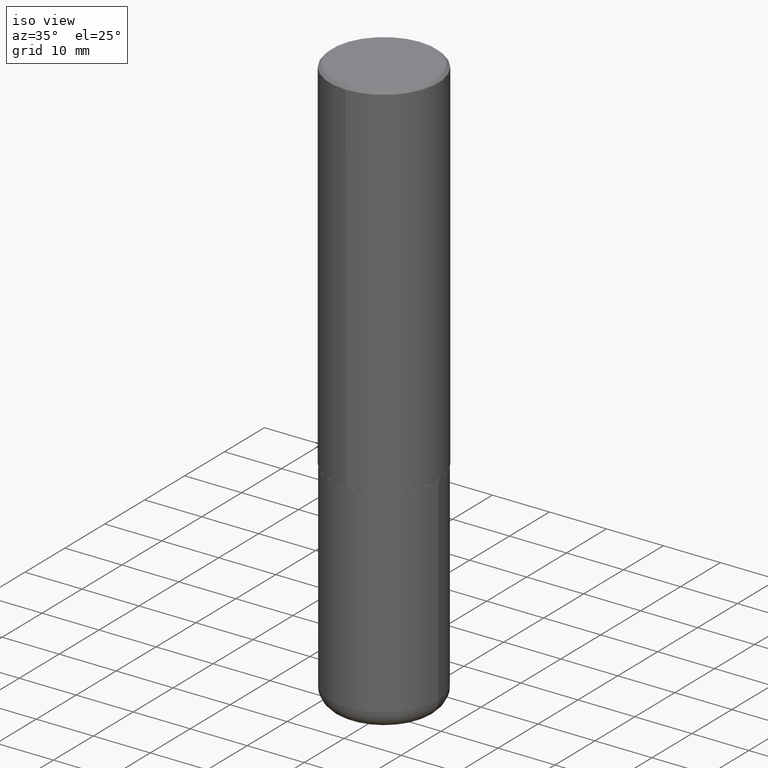
[diagram: clean part render]
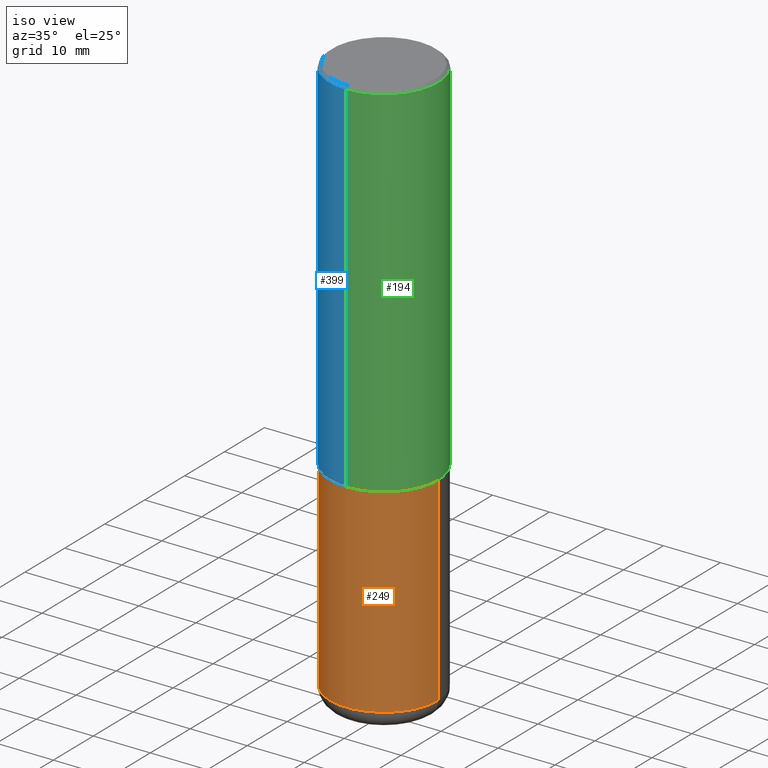
[diagram: same view with three faces highlighted in distinct colors, each labeled with its STEP entity id]
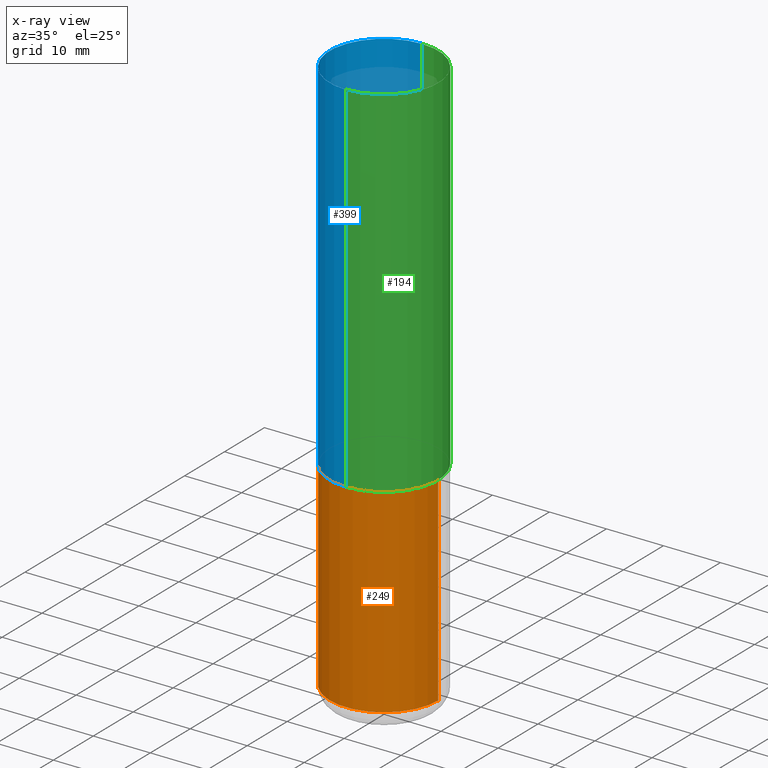
[diagram: x-ray of the same camera — body ghosted, the three highlighted faces saturated]
A machine part, iso view with three faces highlighted in distinct colors.
The next image is the same camera in x-ray (body ghosted, the three faces saturated) — at least one of them is partly hidden behind the body in this view.
Their STEP definitions:

[orange] entity #249 — the highlighted cylindrical surface (partial cylindrical patch) has radius 9.525 mm, axis along (-0, 0, 1).
#20 = AXIS2_PLACEMENT_3D ( 'NONE', #167, #362, #69 ) ;
#39 = EDGE_CURVE ( 'NONE', #196, #377, #205, .T. ) ;
#42 = LINE ( 'NONE', #231, #393 ) ;
#58 = VERTEX_POINT ( 'NONE', #230 ) ;
#68 = EDGE_CURVE ( 'NONE', #416, #58, #259, .T. ) ;
#69 = DIRECTION ( 'NONE',  ( 1.000000000000000000, -6.982962677686263555E-15, 0.000000000000000000 ) ) ;
#74 = AXIS2_PLACEMENT_3D ( 'NONE', #134, #198, #133 ) ;
#77 = LINE ( 'NONE', #336, #96 ) ;
#96 = VECTOR ( 'NONE', #203, 39.37007874015748143 ) ;
#115 = EDGE_LOOP ( 'NONE', ( #246, #407, #219, #244 ) ) ;
#116 = EDGE_CURVE ( 'NONE', #377, #58, #77, .T. ) ;
#124 = EDGE_CURVE ( 'NONE', #196, #416, #42, .T. ) ;
#127 = CYLINDRICAL_SURFACE ( 'NONE', #210, 0.3749999999999999445 ) ;
#133 = DIRECTION ( 'NONE',  ( 1.000000000000000000, -6.982962677686264344E-15, 0.000000000000000000 ) ) ;
#134 = CARTESIAN_POINT ( 'NONE',  ( 6.113672015462840371E-29, -8.728703347107863365E-15, -2.499999999999999556 ) ) ;
#154 = FACE_OUTER_BOUND ( 'NONE', #115, .T. ) ;
#161 = DIRECTION ( 'NONE',  ( -2.445468806185136597E-29, 3.491481338843145583E-15, 1.000000000000000000 ) ) ;
#167 = CARTESIAN_POINT ( 'NONE',  ( 9.476191623967404313E-29, -1.352949018801718908E-14, -3.875000000000000000 ) ) ;
#196 = VERTEX_POINT ( 'NONE', #414 ) ;
#198 = DIRECTION ( 'NONE',  ( -2.445468806185136597E-29, 3.491481338843145583E-15, 1.000000000000000000 ) ) ;
#203 = DIRECTION ( 'NONE',  ( -2.445468806185136877E-29, 3.491481338843145188E-15, 1.000000000000000000 ) ) ;
#205 = CIRCLE ( 'NONE', #20, 0.3749999999999999445 ) ;
#210 = AXIS2_PLACEMENT_3D ( 'NONE', #357, #161, #248 ) ;
#211 = CARTESIAN_POINT ( 'NONE',  ( 0.3749999999999999445, -1.614810119214953752E-14, -3.875000000000000000 ) ) ;
#219 = ORIENTED_EDGE ( 'NONE', *, *, #116, .T. ) ;
#229 = CARTESIAN_POINT ( 'NONE',  ( -0.3750000000000000555, -8.464561508462150527E-15, -2.499999999999999556 ) ) ;
#230 = CARTESIAN_POINT ( 'NONE',  ( 0.3750000000000000555, -1.134731435124021180E-14, -2.499999999999999556 ) ) ;
#231 = CARTESIAN_POINT ( 'NONE',  ( -0.3749999999999999445, 2.664535259100375303E-15, -1.844600658845589318E-29 ) ) ;
#244 = ORIENTED_EDGE ( 'NONE', *, *, #68, .F. ) ;
#246 = ORIENTED_EDGE ( 'NONE', *, *, #124, .F. ) ;
#248 = DIRECTION ( 'NONE',  ( 1.000000000000000000, -6.982962677686266711E-15, 4.876176775795935793E-29 ) ) ;
#249 = ADVANCED_FACE ( 'NONE', ( #154 ), #127, .T. ) ;
#259 = CIRCLE ( 'NONE', #74, 0.3750000000000000555 ) ;
#336 = CARTESIAN_POINT ( 'NONE',  ( 0.3749999999999999445, -2.618611004132349622E-15, 1.828566290923475642E-29 ) ) ;
#357 = CARTESIAN_POINT ( 'NONE',  ( 0.000000000000000000, 0.000000000000000000, 0.000000000000000000 ) ) ;
#362 = DIRECTION ( 'NONE',  ( -2.445468806185136597E-29, 3.491481338843145583E-15, 1.000000000000000000 ) ) ;
#365 = DIRECTION ( 'NONE',  ( -2.445468806185136877E-29, 3.491481338843145188E-15, 1.000000000000000000 ) ) ;
#377 = VERTEX_POINT ( 'NONE', #211 ) ;
#393 = VECTOR ( 'NONE', #365, 39.37007874015748143 ) ;
#407 = ORIENTED_EDGE ( 'NONE', *, *, #39, .T. ) ;
#414 = CARTESIAN_POINT ( 'NONE',  ( -0.3749999999999999445, -1.086495492891681496E-14, -3.875000000000000000 ) ) ;
#416 = VERTEX_POINT ( 'NONE', #229 ) ;

[blue] entity #399 — the highlighted cylindrical surface (partial cylindrical patch) has radius 9.525 mm, axis along (-0, 0, 1).
#12 = EDGE_CURVE ( 'NONE', #126, #83, #15, .T. ) ;
#13 = CARTESIAN_POINT ( 'NONE',  ( 4.888791725774251015E-31, -6.986035709428135453E-17, -0.02000000000000008715 ) ) ;
#15 = CIRCLE ( 'NONE', #347, 0.3750000000000002776 ) ;
#25 = VERTEX_POINT ( 'NONE', #202 ) ;
#27 = DIRECTION ( 'NONE',  ( -2.444395862887114472E-29, 3.493017854714053009E-15, 1.000000000000000000 ) ) ;
#38 = DIRECTION ( 'NONE',  ( -2.444395862887114192E-29, 3.493017854714053009E-15, 1.000000000000000000 ) ) ;
#64 = ORIENTED_EDGE ( 'NONE', *, *, #12, .T. ) ;
#71 = CYLINDRICAL_SURFACE ( 'NONE', #181, 0.3750000000000001665 ) ;
#83 = VERTEX_POINT ( 'NONE', #328 ) ;
#85 = EDGE_CURVE ( 'NONE', #83, #118, #395, .T. ) ;
#104 = CARTESIAN_POINT ( 'NONE',  ( -2.618611004132351200E-15, -0.3750000000000001665, 1.309881695517770421E-15 ) ) ;
#112 = CARTESIAN_POINT ( 'NONE',  ( 2.664535259100376486E-15, 0.3750000000000001665, -1.309881695517770421E-15 ) ) ;
#118 = VERTEX_POINT ( 'NONE', #331 ) ;
#126 = VERTEX_POINT ( 'NONE', #400 ) ;
#143 = DIRECTION ( 'NONE',  ( -2.444395862887114192E-29, 3.493017854714053009E-15, 1.000000000000000000 ) ) ;
#144 = AXIS2_PLACEMENT_3D ( 'NONE', #13, #27, #352 ) ;
#147 = CARTESIAN_POINT ( 'NONE',  ( 6.108545261354898806E-29, -8.729051618930418030E-15, -2.498999999999999666 ) ) ;
#150 = EDGE_CURVE ( 'NONE', #126, #25, #274, .T. ) ;
#165 = DIRECTION ( 'NONE',  ( -2.444395862887114472E-29, 3.493017854714053009E-15, 1.000000000000000000 ) ) ;
#178 = ORIENTED_EDGE ( 'NONE', *, *, #85, .T. ) ;
#181 = AXIS2_PLACEMENT_3D ( 'NONE', #223, #165, #296 ) ;
#202 = CARTESIAN_POINT ( 'NONE',  ( 2.618611004132350411E-15, 0.3749999999999999445, -0.02000000000000139513 ) ) ;
#206 = VECTOR ( 'NONE', #143, 39.37007874015748143 ) ;
#223 = CARTESIAN_POINT ( 'NONE',  ( 0.000000000000000000, 0.000000000000000000, 0.000000000000000000 ) ) ;
#226 = DIRECTION ( 'NONE',  ( -6.982962677686266711E-15, -1.000000000000000000, 2.913971193241878794E-15 ) ) ;
#274 = LINE ( 'NONE', #112, #206 ) ;
#291 = DIRECTION ( 'NONE',  ( -2.444395862887114472E-29, 3.493017854714053009E-15, 1.000000000000000000 ) ) ;
#294 = EDGE_LOOP ( 'NONE', ( #353, #64, #178, #318 ) ) ;
#296 = DIRECTION ( 'NONE',  ( -6.982962677686266711E-15, -1.000000000000000000, 3.493017854714053009E-15 ) ) ;
#307 = VECTOR ( 'NONE', #38, 39.37007874015748143 ) ;
#318 = ORIENTED_EDGE ( 'NONE', *, *, #360, .F. ) ;
#326 = FACE_OUTER_BOUND ( 'NONE', #294, .T. ) ;
#328 = CARTESIAN_POINT ( 'NONE',  ( -2.618611004132290852E-15, -0.3750000000000090483, -2.498999999999998778 ) ) ;
#331 = CARTESIAN_POINT ( 'NONE',  ( -2.572686749164323547E-15, -0.3750000000000001110, -0.01999999999999877570 ) ) ;
#347 = AXIS2_PLACEMENT_3D ( 'NONE', #147, #291, #226 ) ;
#352 = DIRECTION ( 'NONE',  ( -6.982962677686265922E-15, -1.000000000000000000, 3.494488891895536035E-15 ) ) ;
#353 = ORIENTED_EDGE ( 'NONE', *, *, #150, .F. ) ;
#360 = EDGE_CURVE ( 'NONE', #25, #118, #378, .T. ) ;
#378 = CIRCLE ( 'NONE', #144, 0.3750000000000000555 ) ;
#395 = LINE ( 'NONE', #104, #307 ) ;
#399 = ADVANCED_FACE ( 'NONE', ( #326 ), #71, .T. ) ;
#400 = CARTESIAN_POINT ( 'NONE',  ( 2.664535259100408040E-15, 0.3749999999999915623, -2.499000000000000998 ) ) ;

[green] entity #194 — the highlighted cylindrical surface (partial cylindrical patch) has radius 9.525 mm, axis along (-0, 0, 1).
#4 = ORIENTED_EDGE ( 'NONE', *, *, #99, .T. ) ;
#25 = VERTEX_POINT ( 'NONE', #202 ) ;
#29 = CARTESIAN_POINT ( 'NONE',  ( 0.000000000000000000, 0.000000000000000000, 0.000000000000000000 ) ) ;
#38 = DIRECTION ( 'NONE',  ( -2.444395862887114192E-29, 3.493017854714053009E-15, 1.000000000000000000 ) ) ;
#54 = CARTESIAN_POINT ( 'NONE',  ( 4.888791725774251015E-31, -6.986035709428135453E-17, -0.02000000000000008715 ) ) ;
#65 = DIRECTION ( 'NONE',  ( -2.444395862887114472E-29, 3.493017854714053009E-15, 1.000000000000000000 ) ) ;
#72 = DIRECTION ( 'NONE',  ( -2.444395862887114472E-29, 3.493017854714053009E-15, 1.000000000000000000 ) ) ;
#83 = VERTEX_POINT ( 'NONE', #328 ) ;
#85 = EDGE_CURVE ( 'NONE', #83, #118, #395, .T. ) ;
#97 = ORIENTED_EDGE ( 'NONE', *, *, #346, .F. ) ;
#99 = EDGE_CURVE ( 'NONE', #83, #126, #237, .T. ) ;
#104 = CARTESIAN_POINT ( 'NONE',  ( -2.618611004132351200E-15, -0.3750000000000001665, 1.309881695517770421E-15 ) ) ;
#112 = CARTESIAN_POINT ( 'NONE',  ( 2.664535259100376486E-15, 0.3750000000000001665, -1.309881695517770421E-15 ) ) ;
#114 = AXIS2_PLACEMENT_3D ( 'NONE', #29, #65, #386 ) ;
#118 = VERTEX_POINT ( 'NONE', #331 ) ;
#126 = VERTEX_POINT ( 'NONE', #400 ) ;
#135 = CIRCLE ( 'NONE', #234, 0.3750000000000000555 ) ;
#143 = DIRECTION ( 'NONE',  ( -2.444395862887114192E-29, 3.493017854714053009E-15, 1.000000000000000000 ) ) ;
#150 = EDGE_CURVE ( 'NONE', #126, #25, #274, .T. ) ;
#185 = DIRECTION ( 'NONE',  ( -2.444395862887114472E-29, 3.493017854714053009E-15, 1.000000000000000000 ) ) ;
#194 = ADVANCED_FACE ( 'NONE', ( #351 ), #292, .T. ) ;
#202 = CARTESIAN_POINT ( 'NONE',  ( 2.618611004132350411E-15, 0.3749999999999999445, -0.02000000000000139513 ) ) ;
#204 = DIRECTION ( 'NONE',  ( -6.982962677686266711E-15, -1.000000000000000000, 2.913971193241878794E-15 ) ) ;
#206 = VECTOR ( 'NONE', #143, 39.37007874015748143 ) ;
#212 = AXIS2_PLACEMENT_3D ( 'NONE', #297, #72, #204 ) ;
#234 = AXIS2_PLACEMENT_3D ( 'NONE', #54, #185, #370 ) ;
#237 = CIRCLE ( 'NONE', #212, 0.3750000000000002776 ) ;
#256 = ORIENTED_EDGE ( 'NONE', *, *, #150, .T. ) ;
#274 = LINE ( 'NONE', #112, #206 ) ;
#282 = EDGE_LOOP ( 'NONE', ( #4, #256, #97, #350 ) ) ;
#292 = CYLINDRICAL_SURFACE ( 'NONE', #114, 0.3750000000000001665 ) ;
#297 = CARTESIAN_POINT ( 'NONE',  ( 6.108545261354898806E-29, -8.729051618930418030E-15, -2.498999999999999666 ) ) ;
#307 = VECTOR ( 'NONE', #38, 39.37007874015748143 ) ;
#328 = CARTESIAN_POINT ( 'NONE',  ( -2.618611004132290852E-15, -0.3750000000000090483, -2.498999999999998778 ) ) ;
#331 = CARTESIAN_POINT ( 'NONE',  ( -2.572686749164323547E-15, -0.3750000000000001110, -0.01999999999999877570 ) ) ;
#346 = EDGE_CURVE ( 'NONE', #118, #25, #135, .T. ) ;
#350 = ORIENTED_EDGE ( 'NONE', *, *, #85, .F. ) ;
#351 = FACE_OUTER_BOUND ( 'NONE', #282, .T. ) ;
#370 = DIRECTION ( 'NONE',  ( -6.982962677686265922E-15, -1.000000000000000000, 3.494488891895536035E-15 ) ) ;
#386 = DIRECTION ( 'NONE',  ( -6.982962677686266711E-15, -1.000000000000000000, 3.493017854714053009E-15 ) ) ;
#395 = LINE ( 'NONE', #104, #307 ) ;
#400 = CARTESIAN_POINT ( 'NONE',  ( 2.664535259100408040E-15, 0.3749999999999915623, -2.499000000000000998 ) ) ;